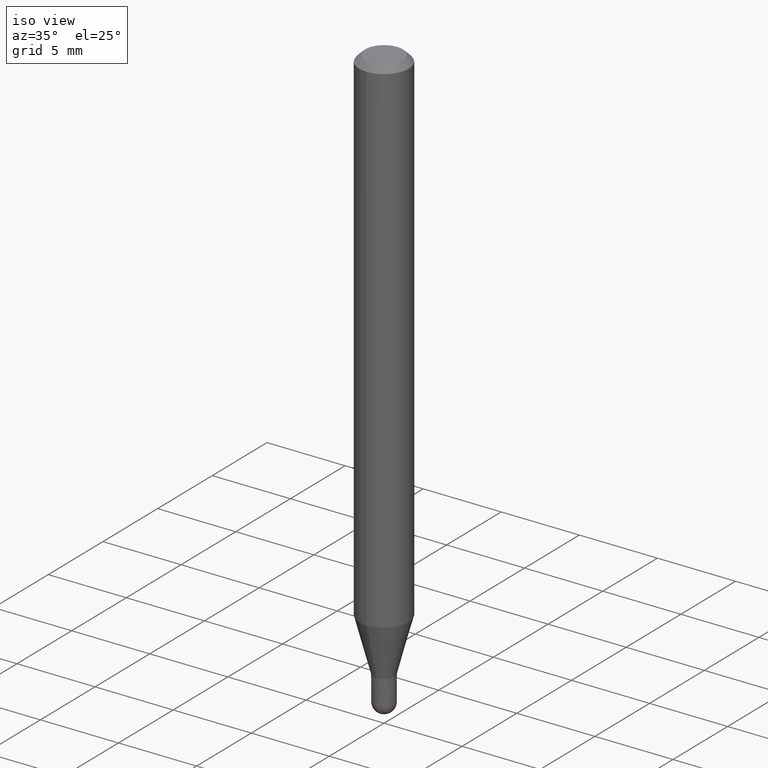
[diagram: clean part render]
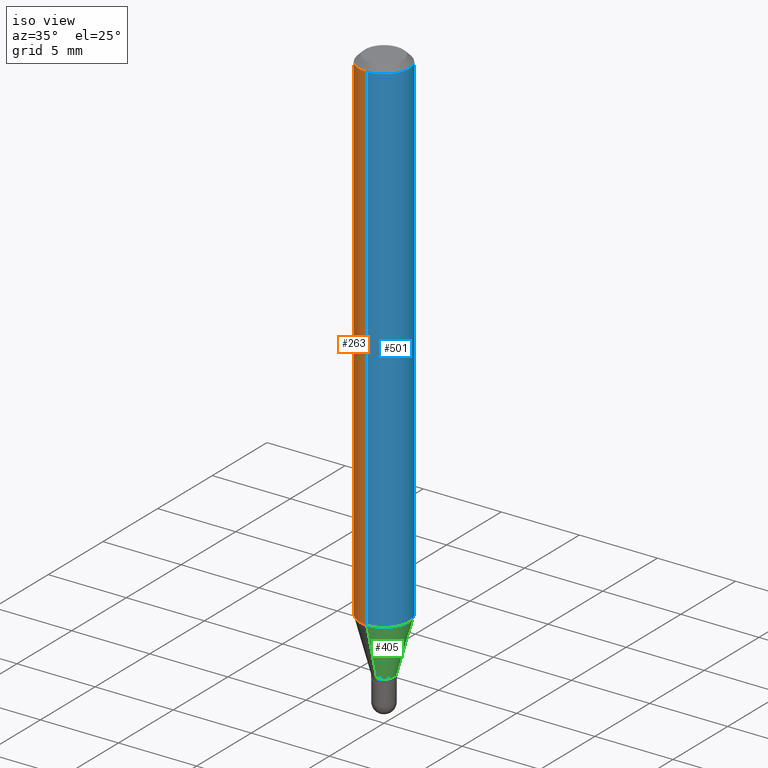
[diagram: same view with three faces highlighted in distinct colors, each labeled with its STEP entity id]
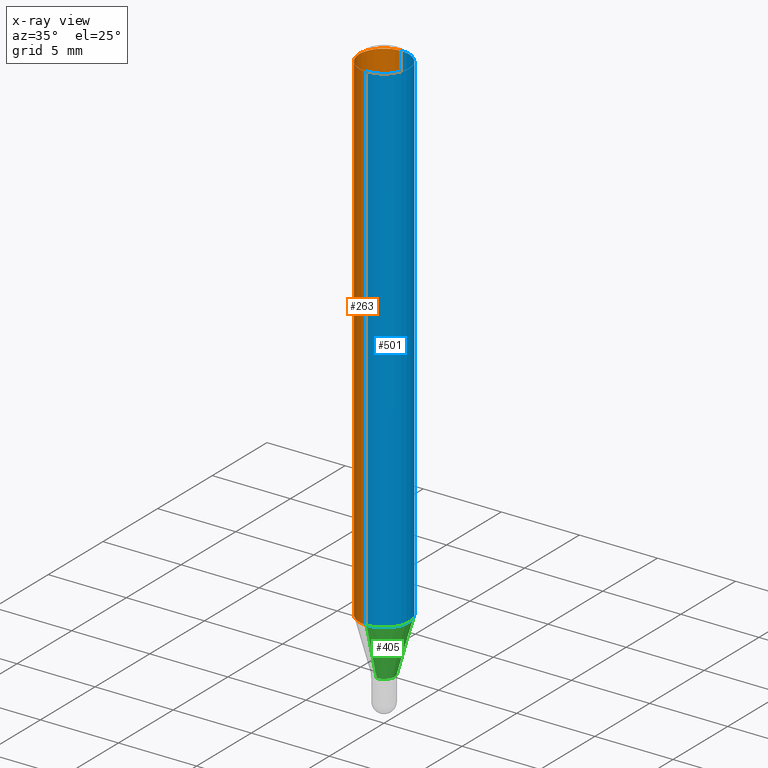
[diagram: x-ray of the same camera — body ghosted, the three highlighted faces saturated]
A machine part, iso view with three faces highlighted in distinct colors.
The next image is the same camera in x-ray (body ghosted, the three faces saturated) — at least one of them is partly hidden behind the body in this view.
Their STEP definitions:

[orange] entity #263 — the highlighted cylindrical surface (edge-blend (fillet) strip) has radius 1.5875 mm, axis along (-0, 0, 1).
#8 = EDGE_CURVE ( 'NONE', #417, #119, #381, .T. ) ;
#11 = CIRCLE ( 'NONE', #469, 0.06250000000000000000 ) ;
#22 = CYLINDRICAL_SURFACE ( 'NONE', #128, 0.06250000000000000000 ) ;
#30 = EDGE_CURVE ( 'NONE', #119, #169, #11, .T. ) ;
#35 = LINE ( 'NONE', #151, #38 ) ;
#38 = VECTOR ( 'NONE', #420, 39.37007874015748143 ) ;
#40 = CARTESIAN_POINT ( 'NONE',  ( 3.668222677057610775E-31, -5.237194129295862514E-17, -0.01500000000000000812 ) ) ;
#49 = CIRCLE ( 'NONE', #335, 0.06250000000000000000 ) ;
#106 = CARTESIAN_POINT ( 'NONE',  ( 4.440892098500625669E-16, 0.06250000000000000000, -2.182164220539941440E-16 ) ) ;
#117 = CARTESIAN_POINT ( 'NONE',  ( -4.364351673553912750E-16, -0.06250000000000005551, -0.01499999999999979128 ) ) ;
#119 = VERTEX_POINT ( 'NONE', #278 ) ;
#128 = AXIS2_PLACEMENT_3D ( 'NONE', #184, #337, #492 ) ;
#140 = ORIENTED_EDGE ( 'NONE', *, *, #440, .T. ) ;
#151 = CARTESIAN_POINT ( 'NONE',  ( -4.364351673553916201E-16, -0.06250000000000000000, 2.182164220539941440E-16 ) ) ;
#152 = ORIENTED_EDGE ( 'NONE', *, *, #8, .F. ) ;
#169 = VERTEX_POINT ( 'NONE', #117 ) ;
#184 = CARTESIAN_POINT ( 'NONE',  ( 0.000000000000000000, 0.000000000000000000, 0.000000000000000000 ) ) ;
#187 = DIRECTION ( 'NONE',  ( -2.445481784705072180E-29, 3.491462752863906305E-15, 1.000000000000000000 ) ) ;
#208 = DIRECTION ( 'NONE',  ( -6.982962677686265922E-15, -1.000000000000000000, 3.483106191921935554E-15 ) ) ;
#225 = VECTOR ( 'NONE', #291, 39.37007874015748143 ) ;
#232 = CARTESIAN_POINT ( 'NONE',  ( 3.119569474732024793E-29, -4.453871091626903081E-15, -1.275646170927520862 ) ) ;
#239 = ORIENTED_EDGE ( 'NONE', *, *, #400, .T. ) ;
#241 = CARTESIAN_POINT ( 'NONE',  ( 4.440892098500934804E-16, 0.06249999999999551747, -1.275646170927521084 ) ) ;
#246 = DIRECTION ( 'NONE',  ( -6.982962677686265922E-15, -1.000000000000000000, 4.370956789862821150E-15 ) ) ;
#251 = CARTESIAN_POINT ( 'NONE',  ( -4.364351673553605587E-16, -0.06250000000000446865, -1.275646170927520417 ) ) ;
#263 = ADVANCED_FACE ( 'NONE', ( #452 ), #22, .T. ) ;
#278 = CARTESIAN_POINT ( 'NONE',  ( 4.440892098500939734E-16, 0.06249999999999995143, -0.01500000000000022669 ) ) ;
#291 = DIRECTION ( 'NONE',  ( -2.445481784705072180E-29, 3.491462752863905910E-15, 1.000000000000000000 ) ) ;
#335 = AXIS2_PLACEMENT_3D ( 'NONE', #232, #187, #246 ) ;
#337 = DIRECTION ( 'NONE',  ( -2.445481784705072180E-29, 3.491462752863906305E-15, 1.000000000000000000 ) ) ;
#365 = DIRECTION ( 'NONE',  ( -2.445481784705072180E-29, 3.491462752863906305E-15, 1.000000000000000000 ) ) ;
#367 = ORIENTED_EDGE ( 'NONE', *, *, #30, .F. ) ;
#381 = LINE ( 'NONE', #106, #225 ) ;
#400 = EDGE_CURVE ( 'NONE', #417, #510, #49, .T. ) ;
#417 = VERTEX_POINT ( 'NONE', #241 ) ;
#420 = DIRECTION ( 'NONE',  ( -2.445481784705072180E-29, 3.491462752863905910E-15, 1.000000000000000000 ) ) ;
#440 = EDGE_CURVE ( 'NONE', #510, #169, #35, .T. ) ;
#452 = FACE_OUTER_BOUND ( 'NONE', #476, .T. ) ;
#469 = AXIS2_PLACEMENT_3D ( 'NONE', #40, #365, #208 ) ;
#476 = EDGE_LOOP ( 'NONE', ( #152, #239, #140, #367 ) ) ;
#492 = DIRECTION ( 'NONE',  ( -6.982962677686265922E-15, -1.000000000000000000, 3.491462752863906305E-15 ) ) ;
#510 = VERTEX_POINT ( 'NONE', #251 ) ;

[blue] entity #501 — the highlighted cylindrical surface (edge-blend (fillet) strip) has radius 1.5875 mm, axis along (-0, 0, 1).
#3 = EDGE_CURVE ( 'NONE', #510, #417, #318, .T. ) ;
#8 = EDGE_CURVE ( 'NONE', #417, #119, #381, .T. ) ;
#35 = LINE ( 'NONE', #151, #38 ) ;
#38 = VECTOR ( 'NONE', #420, 39.37007874015748143 ) ;
#61 = AXIS2_PLACEMENT_3D ( 'NONE', #283, #485, #293 ) ;
#64 = DIRECTION ( 'NONE',  ( -6.982962677686265922E-15, -1.000000000000000000, 4.370956789862821150E-15 ) ) ;
#103 = FACE_OUTER_BOUND ( 'NONE', #247, .T. ) ;
#106 = CARTESIAN_POINT ( 'NONE',  ( 4.440892098500625669E-16, 0.06250000000000000000, -2.182164220539941440E-16 ) ) ;
#117 = CARTESIAN_POINT ( 'NONE',  ( -4.364351673553912750E-16, -0.06250000000000005551, -0.01499999999999979128 ) ) ;
#119 = VERTEX_POINT ( 'NONE', #278 ) ;
#146 = AXIS2_PLACEMENT_3D ( 'NONE', #482, #226, #64 ) ;
#151 = CARTESIAN_POINT ( 'NONE',  ( -4.364351673553916201E-16, -0.06250000000000000000, 2.182164220539941440E-16 ) ) ;
#169 = VERTEX_POINT ( 'NONE', #117 ) ;
#173 = AXIS2_PLACEMENT_3D ( 'NONE', #433, #398, #205 ) ;
#205 = DIRECTION ( 'NONE',  ( -6.982962677686265922E-15, -1.000000000000000000, 3.491462752863906305E-15 ) ) ;
#223 = ORIENTED_EDGE ( 'NONE', *, *, #3, .T. ) ;
#225 = VECTOR ( 'NONE', #291, 39.37007874015748143 ) ;
#226 = DIRECTION ( 'NONE',  ( -2.445481784705072180E-29, 3.491462752863906305E-15, 1.000000000000000000 ) ) ;
#240 = EDGE_CURVE ( 'NONE', #169, #119, #481, .T. ) ;
#241 = CARTESIAN_POINT ( 'NONE',  ( 4.440892098500934804E-16, 0.06249999999999551747, -1.275646170927521084 ) ) ;
#247 = EDGE_LOOP ( 'NONE', ( #223, #314, #394, #484 ) ) ;
#250 = CYLINDRICAL_SURFACE ( 'NONE', #173, 0.06250000000000000000 ) ;
#251 = CARTESIAN_POINT ( 'NONE',  ( -4.364351673553605587E-16, -0.06250000000000446865, -1.275646170927520417 ) ) ;
#278 = CARTESIAN_POINT ( 'NONE',  ( 4.440892098500939734E-16, 0.06249999999999995143, -0.01500000000000022669 ) ) ;
#283 = CARTESIAN_POINT ( 'NONE',  ( 3.668222677057610775E-31, -5.237194129295862514E-17, -0.01500000000000000812 ) ) ;
#291 = DIRECTION ( 'NONE',  ( -2.445481784705072180E-29, 3.491462752863905910E-15, 1.000000000000000000 ) ) ;
#293 = DIRECTION ( 'NONE',  ( -6.982962677686265922E-15, -1.000000000000000000, 3.483106191921935554E-15 ) ) ;
#314 = ORIENTED_EDGE ( 'NONE', *, *, #8, .T. ) ;
#318 = CIRCLE ( 'NONE', #146, 0.06250000000000000000 ) ;
#381 = LINE ( 'NONE', #106, #225 ) ;
#394 = ORIENTED_EDGE ( 'NONE', *, *, #240, .F. ) ;
#398 = DIRECTION ( 'NONE',  ( -2.445481784705072180E-29, 3.491462752863906305E-15, 1.000000000000000000 ) ) ;
#417 = VERTEX_POINT ( 'NONE', #241 ) ;
#420 = DIRECTION ( 'NONE',  ( -2.445481784705072180E-29, 3.491462752863905910E-15, 1.000000000000000000 ) ) ;
#433 = CARTESIAN_POINT ( 'NONE',  ( 0.000000000000000000, 0.000000000000000000, 0.000000000000000000 ) ) ;
#440 = EDGE_CURVE ( 'NONE', #510, #169, #35, .T. ) ;
#481 = CIRCLE ( 'NONE', #61, 0.06250000000000000000 ) ;
#482 = CARTESIAN_POINT ( 'NONE',  ( 3.119569474732024793E-29, -4.453871091626903081E-15, -1.275646170927520862 ) ) ;
#484 = ORIENTED_EDGE ( 'NONE', *, *, #440, .F. ) ;
#485 = DIRECTION ( 'NONE',  ( -2.445481784705072180E-29, 3.491462752863906305E-15, 1.000000000000000000 ) ) ;
#501 = ADVANCED_FACE ( 'NONE', ( #103 ), #250, .T. ) ;
#510 = VERTEX_POINT ( 'NONE', #251 ) ;

[green] entity #405 — the highlighted conical surface has half-angle 15 deg.
#3 = EDGE_CURVE ( 'NONE', #510, #417, #318, .T. ) ;
#9 = CARTESIAN_POINT ( 'NONE',  ( -1.850485109586510286E-16, -0.02650000000000484607, -1.409999999999999920 ) ) ;
#18 = EDGE_CURVE ( 'NONE', #37, #148, #503, .T. ) ;
#37 = VERTEX_POINT ( 'NONE', #9 ) ;
#52 = EDGE_CURVE ( 'NONE', #37, #510, #357, .T. ) ;
#64 = DIRECTION ( 'NONE',  ( -6.982962677686265922E-15, -1.000000000000000000, 4.370956789862821150E-15 ) ) ;
#110 = EDGE_CURVE ( 'NONE', #148, #417, #158, .T. ) ;
#146 = AXIS2_PLACEMENT_3D ( 'NONE', #482, #226, #64 ) ;
#148 = VERTEX_POINT ( 'NONE', #462 ) ;
#156 = AXIS2_PLACEMENT_3D ( 'NONE', #341, #390, #393 ) ;
#158 = LINE ( 'NONE', #416, #290 ) ;
#188 = ORIENTED_EDGE ( 'NONE', *, *, #110, .T. ) ;
#226 = DIRECTION ( 'NONE',  ( -2.445481784705072180E-29, 3.491462752863906305E-15, 1.000000000000000000 ) ) ;
#241 = CARTESIAN_POINT ( 'NONE',  ( 4.440892098500934804E-16, 0.06249999999999551747, -1.275646170927521084 ) ) ;
#251 = CARTESIAN_POINT ( 'NONE',  ( -4.364351673553605587E-16, -0.06250000000000446865, -1.275646170927520417 ) ) ;
#290 = VECTOR ( 'NONE', #351, 39.37007874015748143 ) ;
#297 = VECTOR ( 'NONE', #471, 39.37007874015748854 ) ;
#307 = FACE_OUTER_BOUND ( 'NONE', #316, .T. ) ;
#316 = EDGE_LOOP ( 'NONE', ( #491, #188, #340, #506 ) ) ;
#318 = CIRCLE ( 'NONE', #146, 0.06250000000000000000 ) ;
#338 = DIRECTION ( 'NONE',  ( -6.982962677686265133E-15, -1.000000000000000000, 0.000000000000000000 ) ) ;
#340 = ORIENTED_EDGE ( 'NONE', *, *, #3, .F. ) ;
#341 = CARTESIAN_POINT ( 'NONE',  ( 3.448129316434151668E-29, -4.922962481538108544E-15, -1.409999999999999920 ) ) ;
#351 = DIRECTION ( 'NONE',  ( 1.839019923739602682E-15, 0.2588190451025252914, 0.9659258262890670910 ) ) ;
#357 = LINE ( 'NONE', #509, #297 ) ;
#372 = AXIS2_PLACEMENT_3D ( 'NONE', #444, #446, #338 ) ;
#379 = CONICAL_SURFACE ( 'NONE', #156, 0.02649999999999992639, 0.2617993877991506291 ) ;
#390 = DIRECTION ( 'NONE',  ( -2.445481784705072180E-29, 3.491462752863906305E-15, 1.000000000000000000 ) ) ;
#393 = DIRECTION ( 'NONE',  ( -6.982962677686265133E-15, -1.000000000000000000, 0.000000000000000000 ) ) ;
#405 = ADVANCED_FACE ( 'NONE', ( #307 ), #379, .T. ) ;
#416 = CARTESIAN_POINT ( 'NONE',  ( 1.882938249764604649E-16, 0.02649999999999500325, -1.409999999999999920 ) ) ;
#417 = VERTEX_POINT ( 'NONE', #241 ) ;
#444 = CARTESIAN_POINT ( 'NONE',  ( 3.448129316434151668E-29, -4.922962481538108544E-15, -1.409999999999999920 ) ) ;
#446 = DIRECTION ( 'NONE',  ( -2.445481784705072180E-29, 3.491462752863906305E-15, 1.000000000000000000 ) ) ;
#462 = CARTESIAN_POINT ( 'NONE',  ( 3.161915174132772068E-16, 0.02649999999999500325, -1.409999999999999920 ) ) ;
#471 = DIRECTION ( 'NONE',  ( -1.807323732225332900E-15, -0.2588190451025185190, 0.9659258262890689783 ) ) ;
#482 = CARTESIAN_POINT ( 'NONE',  ( 3.119569474732024793E-29, -4.453871091626903081E-15, -1.275646170927520862 ) ) ;
#491 = ORIENTED_EDGE ( 'NONE', *, *, #18, .T. ) ;
#503 = CIRCLE ( 'NONE', #372, 0.02649999999999992639 ) ;
#506 = ORIENTED_EDGE ( 'NONE', *, *, #52, .F. ) ;
#509 = CARTESIAN_POINT ( 'NONE',  ( -1.850485109586510286E-16, -0.02650000000000484607, -1.409999999999999920 ) ) ;
#510 = VERTEX_POINT ( 'NONE', #251 ) ;